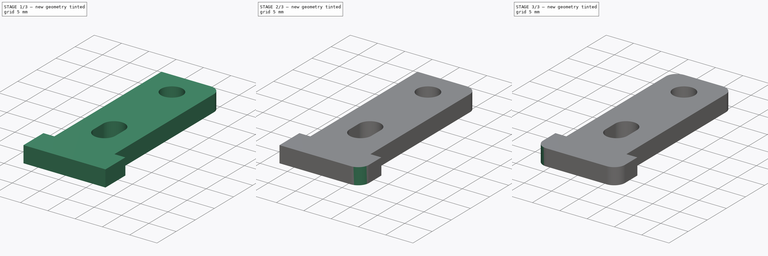
[diagram: build sequence overview — one tinted view per stage of 3, left to right]
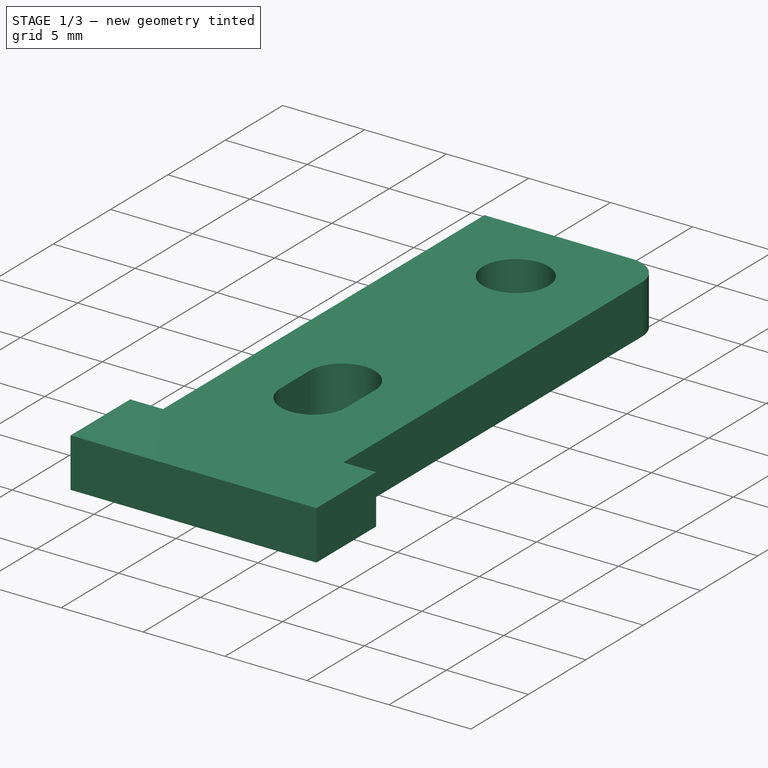
[diagram: stage 1 of 3 — iso view after this stage's code; geometry added in this stage tinted green]
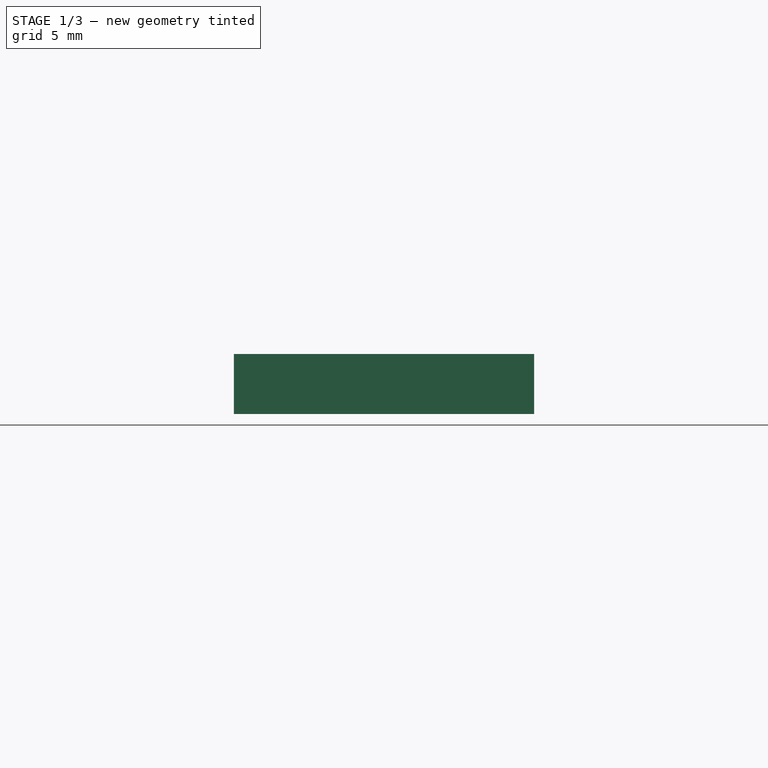
[diagram: stage 1 of 3 — front view after this stage's code; geometry added in this stage tinted green]
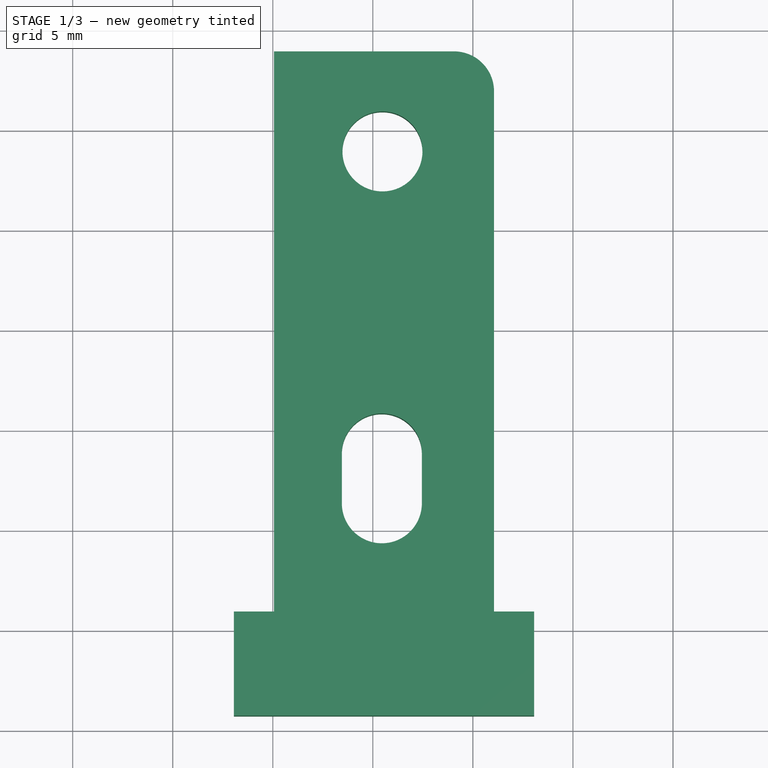
[diagram: stage 1 of 3 — top view after this stage's code; geometry added in this stage tinted green]
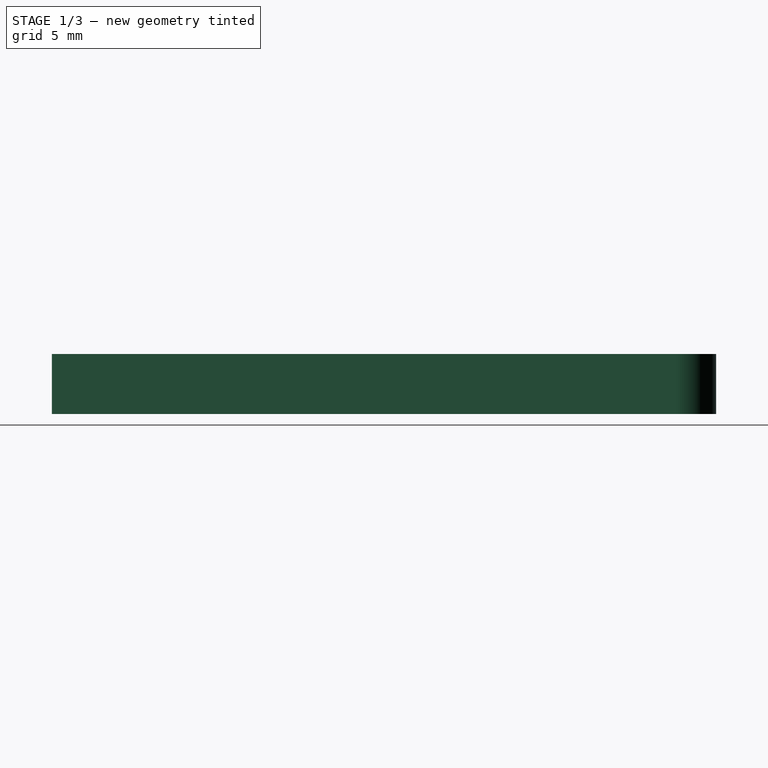
[diagram: stage 1 of 3 — right view after this stage's code; geometry added in this stage tinted green]
FCSTD DOCUMENT  (FreeCAD 0.16R6704 (Git))
Label: soporte motor
License: All rights reserved
LicenseURL: http://en.wikipedia.org/wiki/All_rights_reserved
objects: Part::Fillet×4, Sketcher::SketchObject×1, PartDesign::Pad×1
note: 7 computed .brp shape members not serialized (recipe doc carries the construction recipe); baked Part::Feature solids carry a one-line shape summary decoded from their .brp

FEATURE [Sketcher::SketchObject] Sketch
  sketch-geometry (13):
    g0: LineSegment StartX=-48.9421 StartY=48.9285 StartZ=0 EndX=-59.9421 EndY=48.9285 EndZ=0
    g1: LineSegment StartX=-59.9421 StartY=48.9285 StartZ=0 EndX=-59.9421 EndY=20.9285 EndZ=0
    g2: LineSegment StartX=-59.9421 StartY=20.9285 StartZ=0 EndX=-61.9421 EndY=20.9285 EndZ=0
    g3: LineSegment StartX=-61.9421 StartY=20.9285 StartZ=0 EndX=-61.9421 EndY=15.7285 EndZ=0
    g4: LineSegment StartX=-61.9421 StartY=15.7285 StartZ=0 EndX=-46.9421 EndY=15.7285 EndZ=0
    g5: LineSegment StartX=-46.9421 StartY=15.7285 StartZ=0 EndX=-46.9421 EndY=20.9285 EndZ=0
    g6: LineSegment StartX=-46.9421 StartY=20.9285 StartZ=0 EndX=-48.9421 EndY=20.9285 EndZ=0
    g7: ArcOfCircle CenterX=-54.5496 CenterY=28.8334 CenterZ=0 NormalX=0 NormalY=0 NormalZ=1 Radius=2 StartAngle=0 EndAngle=3.14159
    g8: ArcOfCircle CenterX=-54.5496 CenterY=26.3407 CenterZ=0 NormalX=0 NormalY=0 NormalZ=1 Radius=2 StartAngle=3.14159 EndAngle=6.28319
    g9: LineSegment StartX=-56.5496 StartY=28.8334 StartZ=0 EndX=-56.5496 EndY=26.3407 EndZ=0
    g10: LineSegment StartX=-52.5496 StartY=28.8334 StartZ=0 EndX=-52.5496 EndY=26.3407 EndZ=0
    g11: LineSegment StartX=-48.9421 StartY=48.9285 StartZ=0 EndX=-48.9421 EndY=20.9285 EndZ=0
    g12: Circle CenterX=-54.5199 CenterY=43.9285 CenterZ=0 NormalX=0 NormalY=0 NormalZ=1 Radius=2
  constraints (29):
    c: Horizontal(g0)
    c: Coincident(g1,g0)
    c: Vertical(g1)
    c: Distance(g1) = 28
    c: Coincident(g2,g1)
    c: Distance(g2) = 2
    c: Coincident(g3,g2)
    c: Distance(g3) = 5.2
    c: Horizontal(g2)
    c: Vertical(g3)
    c: Coincident(g4,g3)
    c: Horizontal(g4)
    c: Distance(g4) = 15
    c: Coincident(g5,g4)
    c: Vertical(g5)
    c: Distance(g5) = 5.2
    c: Coincident(g6,g5)
    c: Horizontal(g6)
    c: Distance(g6) = 2
    c: Tangent(g7,g10) = 1.5708
    c: Tangent(g7,g9) = -1.5708
    c: Tangent(g9,g8) = -1.5708
    c: Tangent(g10,g8) = 1.5708
    c: Vertical(g9)
    c: Equal(g7,g8)
    c: Coincident(g11,g0)
    c: Coincident(g11,g6)
    c: Vertical(g11)
    c: Radius(g12) = 2
FEATURE [PartDesign::Pad] Pad
  Length = 3
  Length2 = 100
  Sketch = -> Sketch
  Type = 0
FEATURE [Part::Fillet] Fillet
  Base = -> Pad
  Edges = 1 edges r=2: [Edge1]
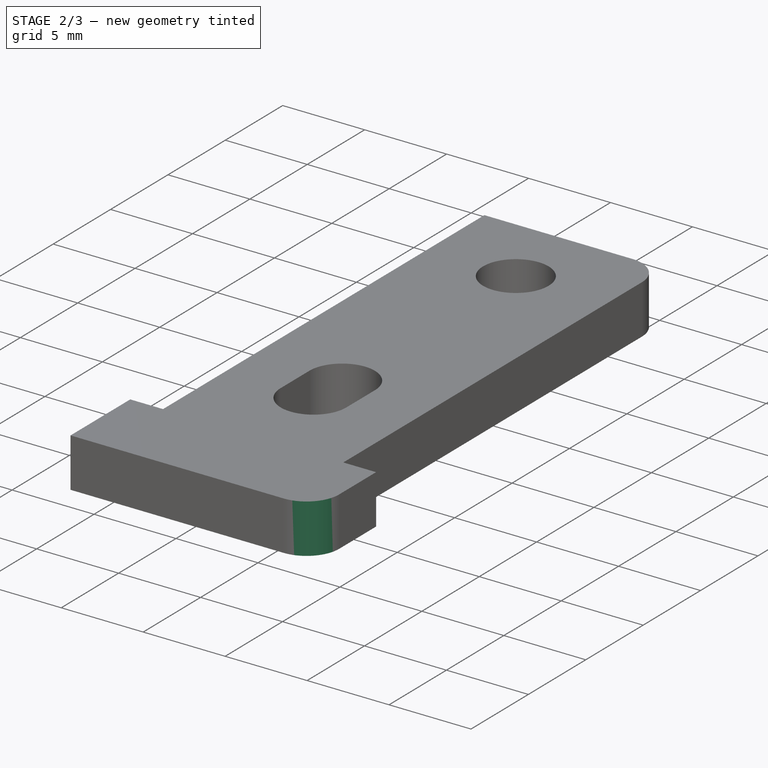
[diagram: stage 2 of 3 — iso view after this stage's code; geometry added in this stage tinted green]
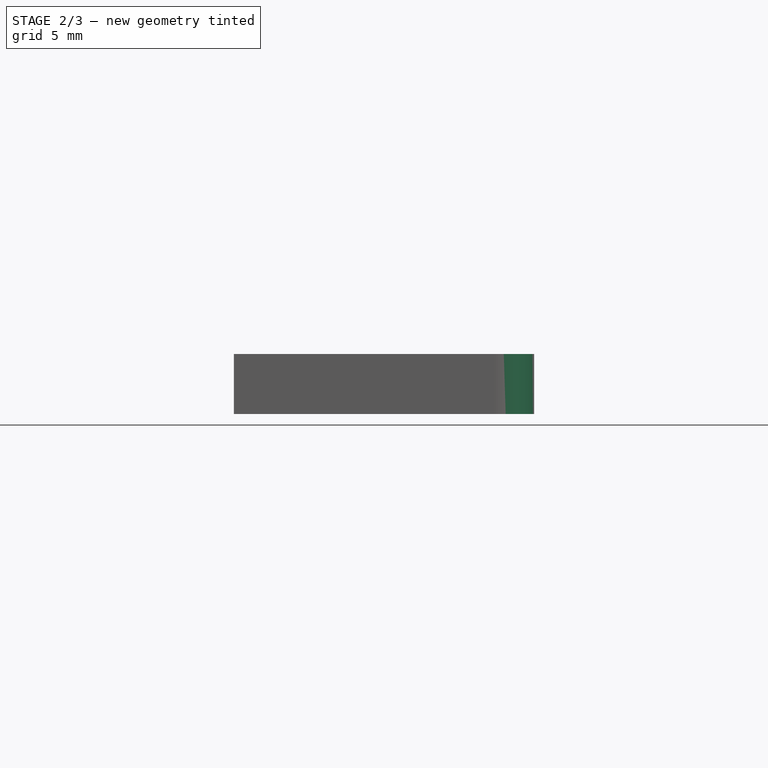
[diagram: stage 2 of 3 — front view after this stage's code; geometry added in this stage tinted green]
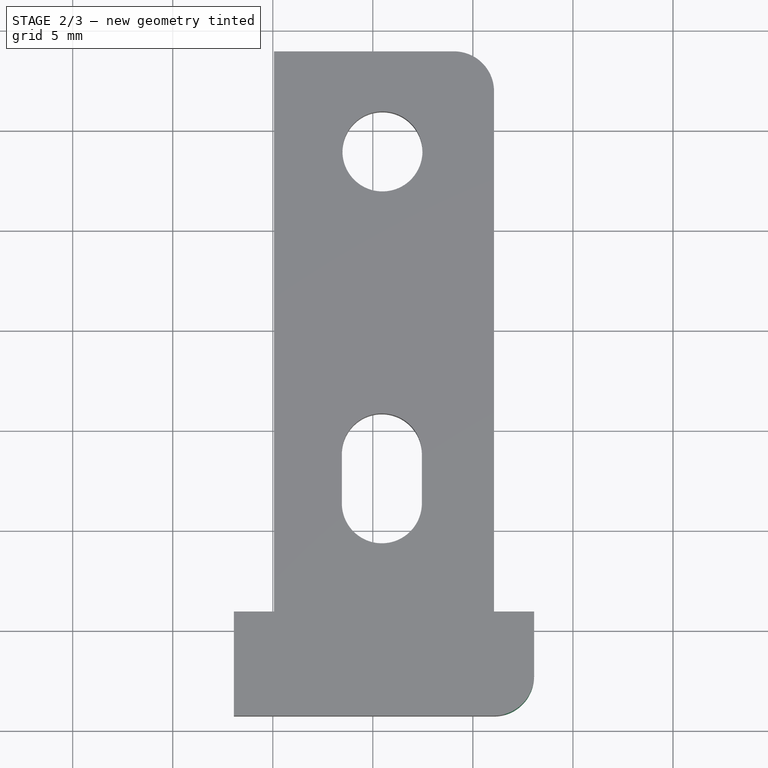
[diagram: stage 2 of 3 — top view after this stage's code; geometry added in this stage tinted green]
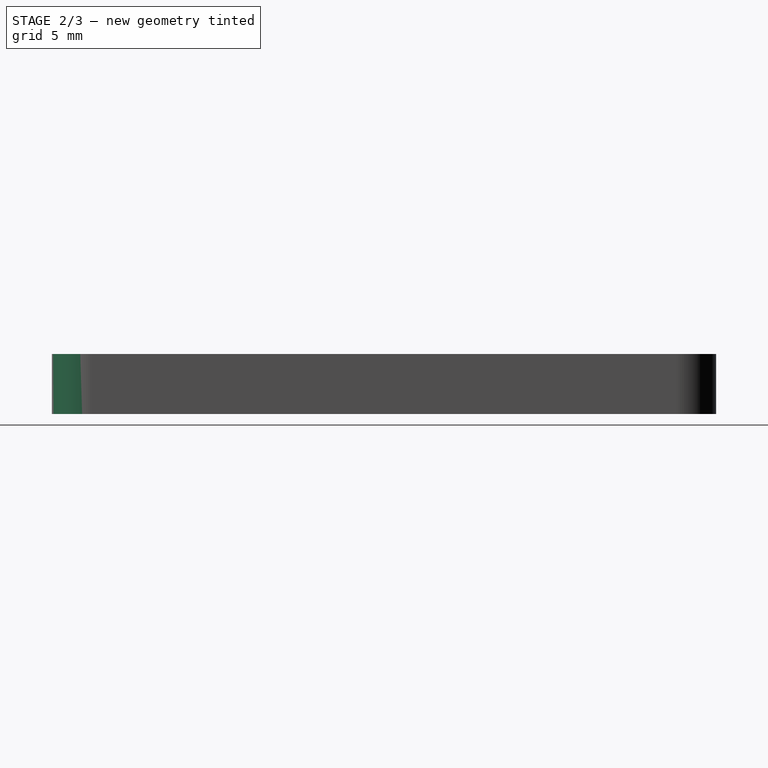
[diagram: stage 2 of 3 — right view after this stage's code; geometry added in this stage tinted green]
FEATURE [Part::Fillet] Fillet001
  Base = -> Fillet
  Edges = 1 edges r=2: [Edge37]
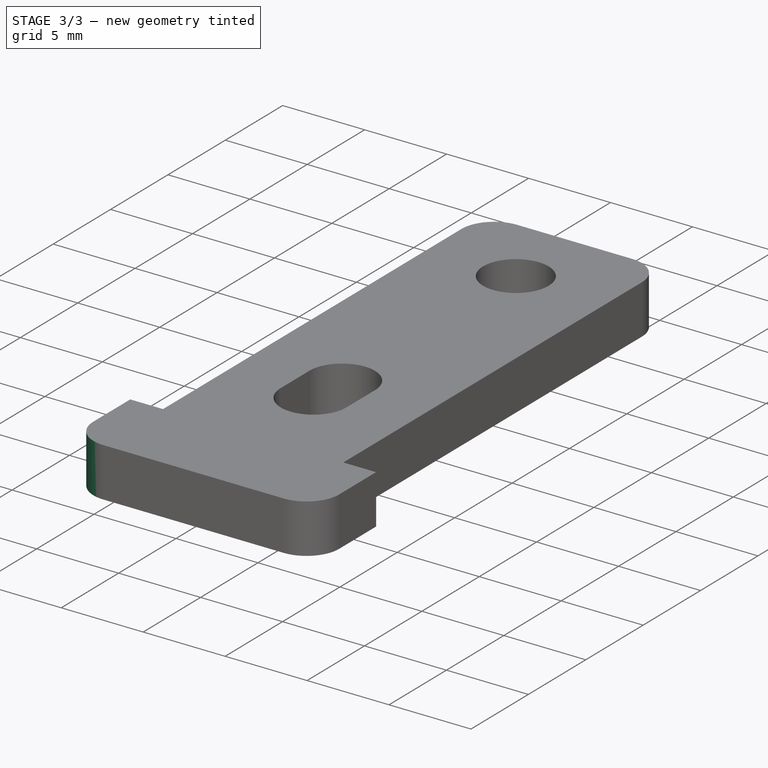
[diagram: stage 3 of 3 — iso view after this stage's code; geometry added in this stage tinted green]
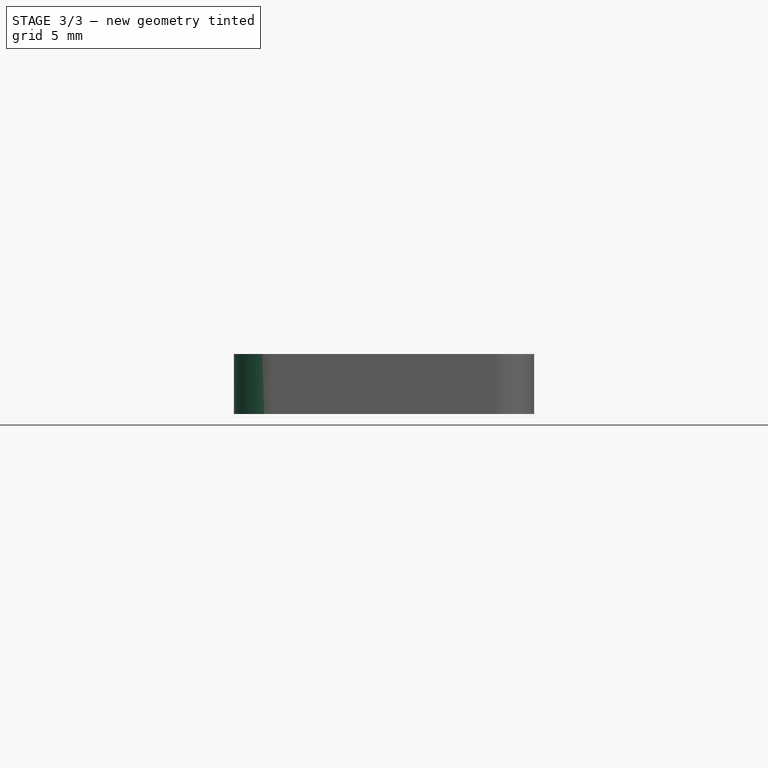
[diagram: stage 3 of 3 — front view after this stage's code; geometry added in this stage tinted green]
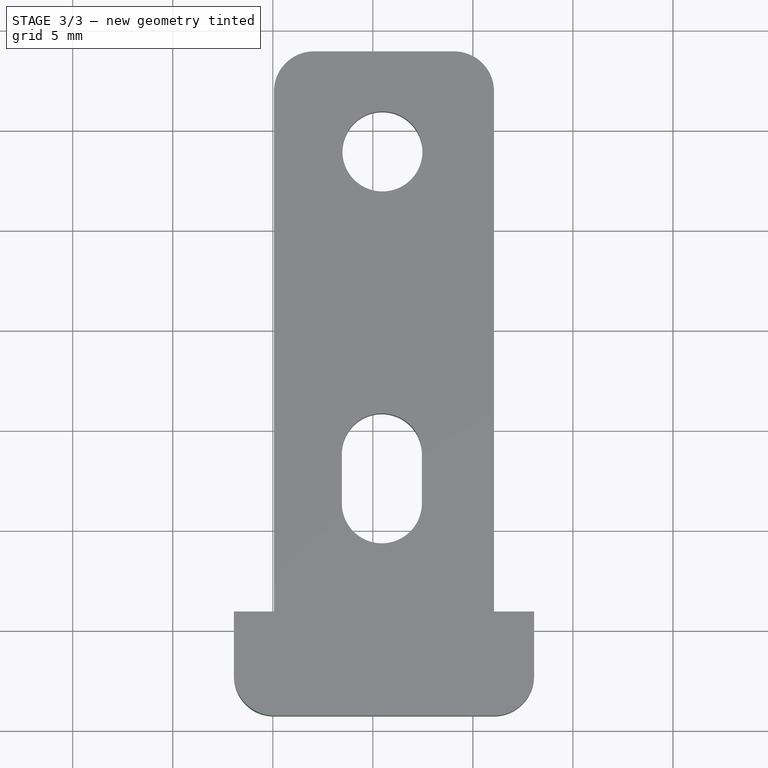
[diagram: stage 3 of 3 — top view after this stage's code; geometry added in this stage tinted green]
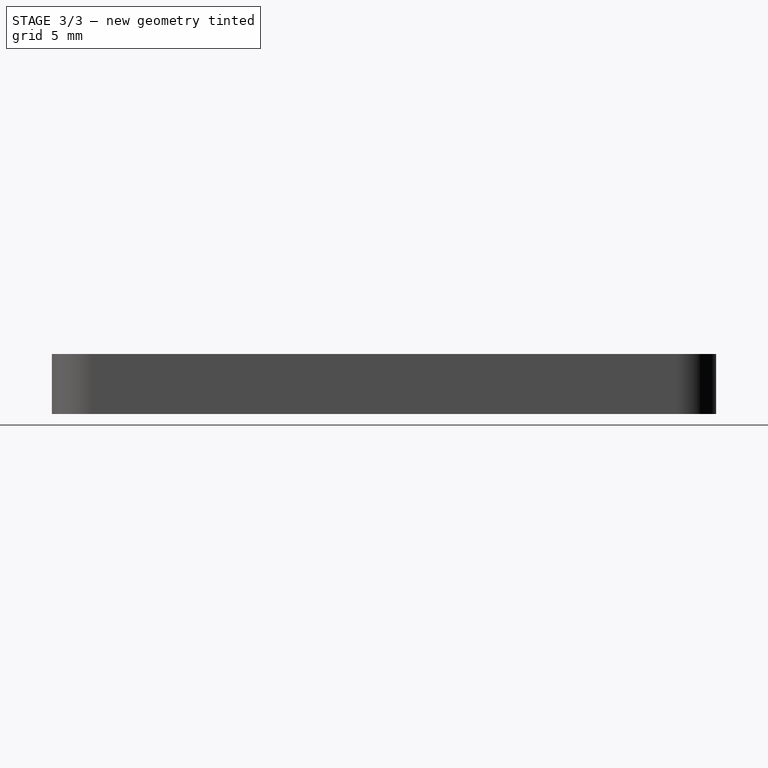
[diagram: stage 3 of 3 — right view after this stage's code; geometry added in this stage tinted green]
FEATURE [Part::Fillet] Fillet002
  Base = -> Fillet001
  Edges = 1 edges r=2: [Edge23]
FEATURE [Part::Fillet] Fillet003
  Base = -> Fillet002
  Edges = 1 edges r=2: [Edge32]
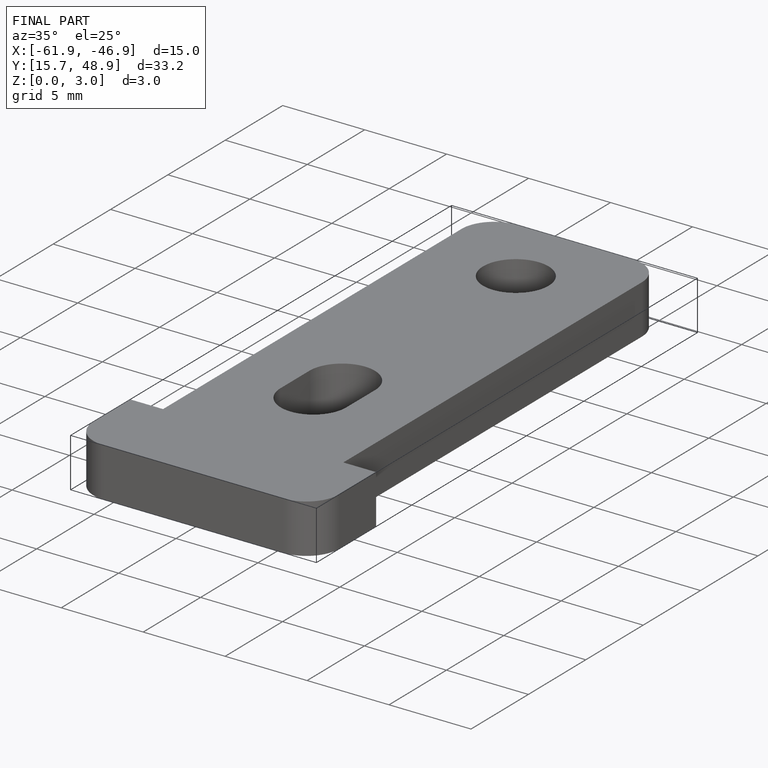
[diagram: finished part — iso view with bounding-box wireframe]
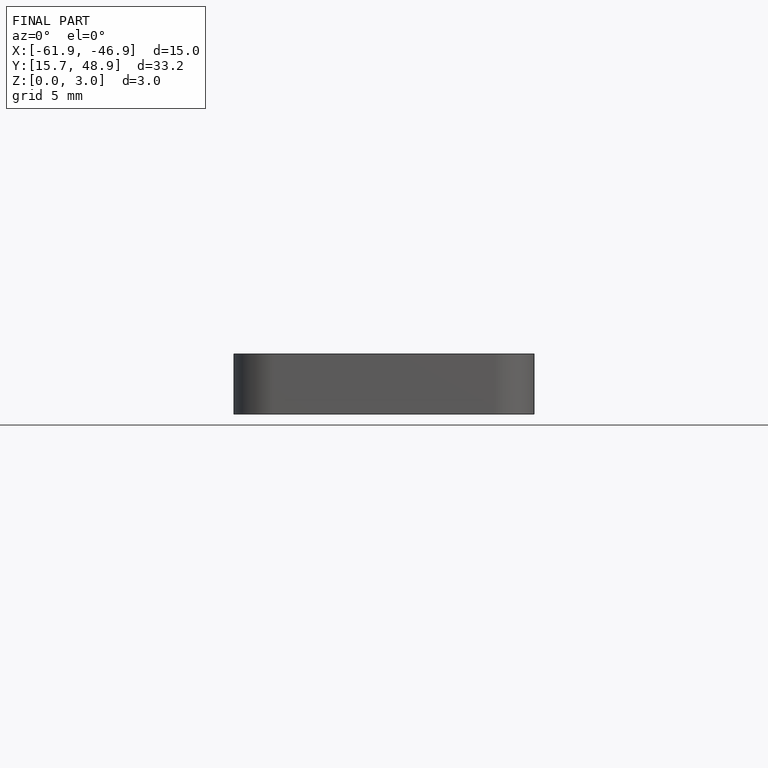
[diagram: finished part — front view with bounding-box wireframe]
